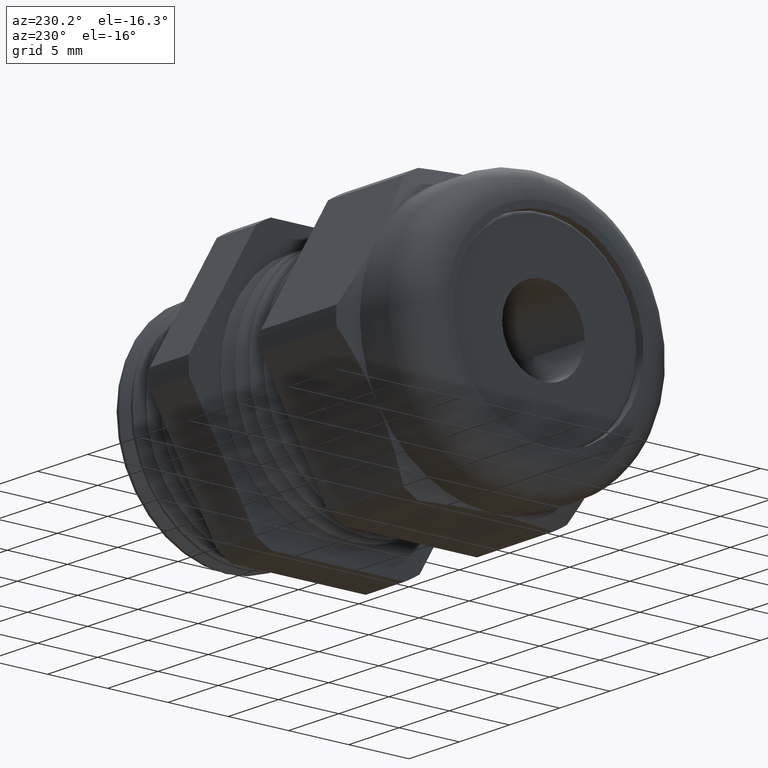
[diagram: clean part render]
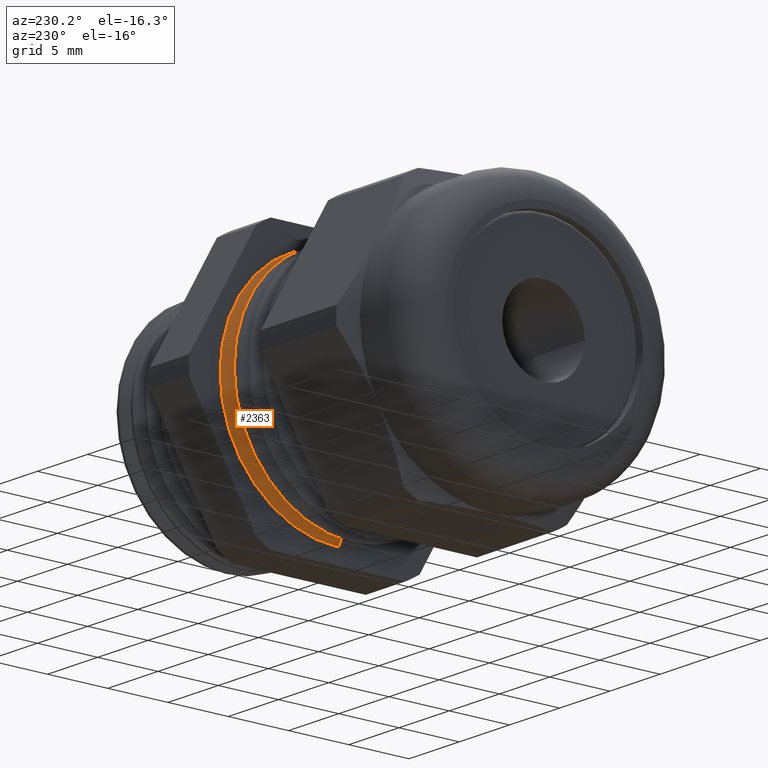
[diagram: same view with one face highlighted and labeled with its STEP entity id]
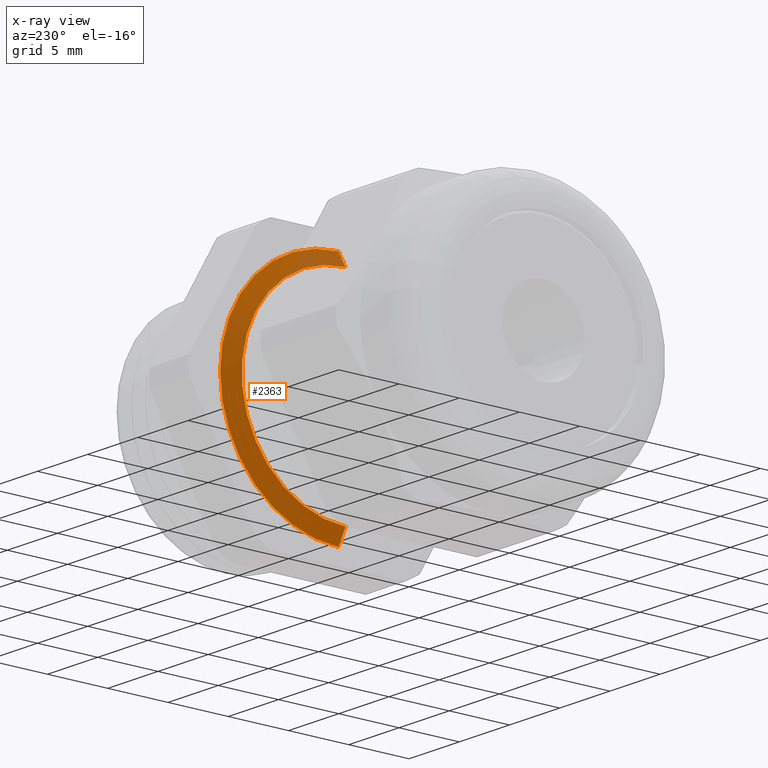
[diagram: x-ray of the same camera — body ghosted, the highlighted face saturated]
A machine part, auxiliary view. The second image highlights one B-rep face of the part: STEP entity #2363.
The next image is the same camera in x-ray: the body ghosted, the highlighted face saturated — about 10% of this face is hidden behind the body in this view.
In plain terms, the highlighted conical surface has half-angle 60 deg.
Its self-contained STEP definition (entity closure, byte-faithful):
#1627 = DIRECTION ( 'NONE',  ( 0.0000000000000000000, 0.0000000000000000000, -1.000000000000000000 ) ) ;
#1628 = DIRECTION ( 'NONE',  ( 1.000000000000000000, 0.0000000000000000000, 0.0000000000000000000 ) ) ;
#1629 = CARTESIAN_POINT ( 'NONE',  ( -0.1568333589770892200, 0.0000000000000000000, 0.0000000000000000000 ) ) ;
#1630 = AXIS2_PLACEMENT_3D ( 'NONE', #1629, #1628, #1627 ) ;
#1631 = CIRCLE ( 'NONE', #1630, 0.3869000000000000200 ) ;
#1632 = CARTESIAN_POINT ( 'NONE',  ( -0.1568333589770892200, 0.0000000000000000000, 0.3869000000000000200 ) ) ;
#1633 = DIRECTION ( 'NONE',  ( 0.5000000000000017800, 1.060575238724905400E-016, 0.8660254037844374900 ) ) ;
#1634 = VECTOR ( 'NONE', #1633, 39.37007874015748100 ) ;
#1635 = CARTESIAN_POINT ( 'NONE',  ( -0.1843333461552113800, 4.154842356573737500E-017, 0.3392686249999999900 ) ) ;
#1636 = LINE ( 'NONE', #1635, #1634 ) ;
#1637 = CARTESIAN_POINT ( 'NONE',  ( -0.1843333461552113800, 4.446500411237423700E-017, 0.3392686249999999900 ) ) ;
#1638 = CARTESIAN_POINT ( 'NONE',  ( -0.1843333461552113800, 0.0000000000000000000, -0.3392686249999999900 ) ) ;
#1639 = DIRECTION ( 'NONE',  ( 0.0000000000000000000, 0.0000000000000000000, -1.000000000000000000 ) ) ;
#1640 = DIRECTION ( 'NONE',  ( 1.000000000000000000, 0.0000000000000000000, 0.0000000000000000000 ) ) ;
#1641 = CARTESIAN_POINT ( 'NONE',  ( -0.1843333461552113800, 0.0000000000000000000, 0.0000000000000000000 ) ) ;
#1642 = AXIS2_PLACEMENT_3D ( 'NONE', #1641, #1640, #1639 ) ;
#1643 = CIRCLE ( 'NONE', #1642, 0.3392686249999999900 ) ;
#1649 = DIRECTION ( 'NONE',  ( 0.0000000000000000000, 0.0000000000000000000, -1.000000000000000000 ) ) ;
#1650 = DIRECTION ( 'NONE',  ( 1.000000000000000000, 0.0000000000000000000, 0.0000000000000000000 ) ) ;
#1651 = CARTESIAN_POINT ( 'NONE',  ( -0.1843333461552113800, 0.0000000000000000000, 0.0000000000000000000 ) ) ;
#1652 = AXIS2_PLACEMENT_3D ( 'NONE', #1651, #1650, #1649 ) ;
#1654 = CONICAL_SURFACE ( 'NONE', #1652, 0.3392686249999999900, 1.047197551196595600 ) ;
#1655 = FACE_OUTER_BOUND ( 'NONE', #2364, .T. ) ;
#1687 = DIRECTION ( 'NONE',  ( 0.5000000000000017800, 0.0000000000000000000, -0.8660254037844374900 ) ) ;
#1688 = VECTOR ( 'NONE', #1687, 39.37007874015748100 ) ;
#1689 = CARTESIAN_POINT ( 'NONE',  ( -0.1843333461552113800, 0.0000000000000000000, -0.3392686249999999900 ) ) ;
#1690 = LINE ( 'NONE', #1689, #1688 ) ;
#1692 = CARTESIAN_POINT ( 'NONE',  ( -0.1568333589770892200, 4.738158465901109900E-017, -0.3869000000000000200 ) ) ;
#2363 = ADVANCED_FACE ( 'NONE', ( #1655 ), #1654, .T. ) ;
#2364 = EDGE_LOOP ( 'NONE', ( #2372, #2373, #2376, #2379 ) ) ;
#2369 = EDGE_CURVE ( 'NONE', #2370, #2371, #1643, .T. ) ;
#2370 = VERTEX_POINT ( 'NONE', #1638 ) ;
#2371 = VERTEX_POINT ( 'NONE', #1637 ) ;
#2372 = ORIENTED_EDGE ( 'NONE', *, *, #2369, .T. ) ;
#2373 = ORIENTED_EDGE ( 'NONE', *, *, #2374, .T. ) ;
#2374 = EDGE_CURVE ( 'NONE', #2371, #2375, #1636, .T. ) ;
#2375 = VERTEX_POINT ( 'NONE', #1632 ) ;
#2376 = ORIENTED_EDGE ( 'NONE', *, *, #2377, .F. ) ;
#2377 = EDGE_CURVE ( 'NONE', #2378, #2375, #1631, .T. ) ;
#2378 = VERTEX_POINT ( 'NONE', #1692 ) ;
#2379 = ORIENTED_EDGE ( 'NONE', *, *, #2380, .F. ) ;
#2380 = EDGE_CURVE ( 'NONE', #2370, #2378, #1690, .T. ) ;